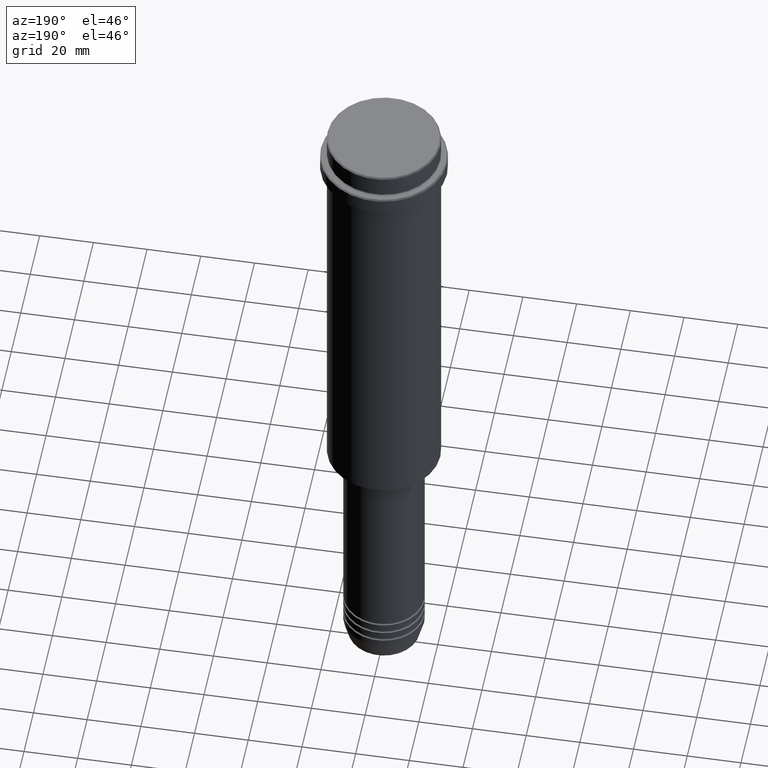
[diagram: clean part render]
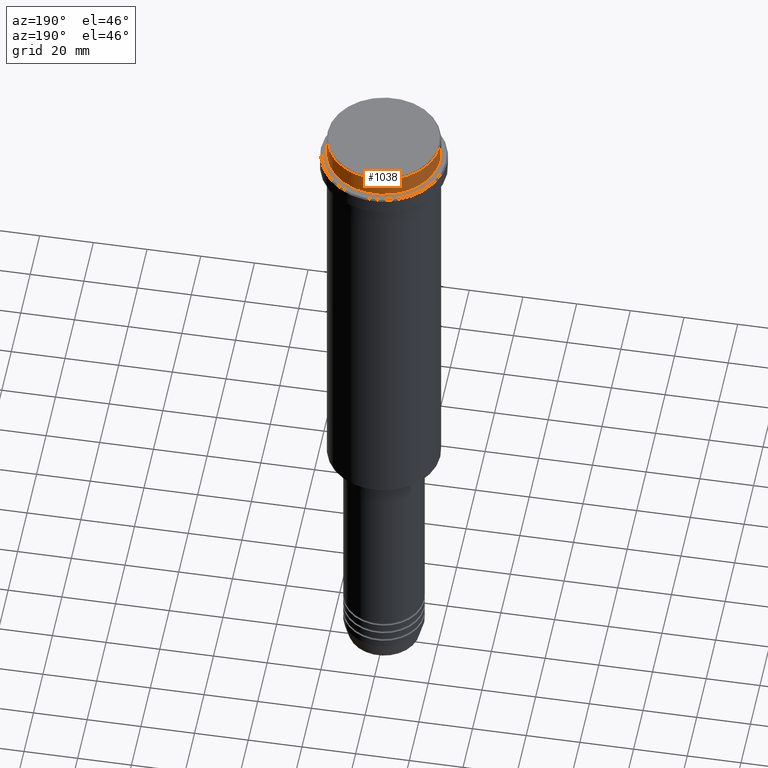
[diagram: same view with one face highlighted and labeled with its STEP entity id]
A machine part, auxiliary view. The second image highlights one B-rep face of the part: STEP entity #1038.
In plain terms, the highlighted cylindrical surface (partial cylindrical patch) has radius 21 mm, axis along (-0, -0, 1).
Its self-contained STEP definition (entity closure, byte-faithful):
#69 = EDGE_CURVE ( 'NONE', #314, #161, #1103, .T. ) ;
#70 = EDGE_CURVE ( 'NONE', #1191, #784, #837, .T. ) ;
#161 = VERTEX_POINT ( 'NONE', #517 ) ;
#186 = FACE_OUTER_BOUND ( 'NONE', #675, .T. ) ;
#191 = DIRECTION ( 'NONE',  ( 1.000000000000000000, 0.000000000000000000, 0.000000000000000000 ) ) ;
#244 = ORIENTED_EDGE ( 'NONE', *, *, #70, .T. ) ;
#256 = CARTESIAN_POINT ( 'NONE',  ( 20.99999999999999645, 0.000000000000000000, 0.000000000000000000 ) ) ;
#262 = AXIS2_PLACEMENT_3D ( 'NONE', #1343, #484, #549 ) ;
#273 = ORIENTED_EDGE ( 'NONE', *, *, #843, .T. ) ;
#298 = CYLINDRICAL_SURFACE ( 'NONE', #1382, 20.99999999999999645 ) ;
#314 = VERTEX_POINT ( 'NONE', #1324 ) ;
#378 = AXIS2_PLACEMENT_3D ( 'NONE', #602, #935, #538 ) ;
#469 = DIRECTION ( 'NONE',  ( -0.000000000000000000, -0.000000000000000000, 1.000000000000000000 ) ) ;
#484 = DIRECTION ( 'NONE',  ( -0.000000000000000000, -0.000000000000000000, 1.000000000000000000 ) ) ;
#517 = CARTESIAN_POINT ( 'NONE',  ( -20.99999999999999645, 2.571758278209441267E-15, -7.999999999999998224 ) ) ;
#538 = DIRECTION ( 'NONE',  ( 1.000000000000000000, 0.000000000000000000, 0.000000000000000000 ) ) ;
#540 = ORIENTED_EDGE ( 'NONE', *, *, #1396, .F. ) ;
#549 = DIRECTION ( 'NONE',  ( 1.000000000000000000, 0.000000000000000000, 0.000000000000000000 ) ) ;
#567 = VECTOR ( 'NONE', #713, 1000.000000000000000 ) ;
#602 = CARTESIAN_POINT ( 'NONE',  ( 0.000000000000000000, 0.000000000000000000, -0.4999999999999241163 ) ) ;
#625 = CARTESIAN_POINT ( 'NONE',  ( 0.000000000000000000, 0.000000000000000000, 0.000000000000000000 ) ) ;
#675 = EDGE_LOOP ( 'NONE', ( #896, #273, #244, #540 ) ) ;
#713 = DIRECTION ( 'NONE',  ( -0.000000000000000000, -0.000000000000000000, 1.000000000000000000 ) ) ;
#763 = CARTESIAN_POINT ( 'NONE',  ( -20.99999999999999645, 2.571758278209441267E-15, -0.4999999999999241163 ) ) ;
#784 = VERTEX_POINT ( 'NONE', #1007 ) ;
#819 = VECTOR ( 'NONE', #469, 1000.000000000000000 ) ;
#837 = CIRCLE ( 'NONE', #378, 20.99999999999999645 ) ;
#843 = EDGE_CURVE ( 'NONE', #161, #1191, #1254, .T. ) ;
#896 = ORIENTED_EDGE ( 'NONE', *, *, #69, .T. ) ;
#935 = DIRECTION ( 'NONE',  ( 0.000000000000000000, 0.000000000000000000, -1.000000000000000000 ) ) ;
#1007 = CARTESIAN_POINT ( 'NONE',  ( 20.99999999999999645, 0.000000000000000000, -0.4999999999999241163 ) ) ;
#1037 = CARTESIAN_POINT ( 'NONE',  ( -20.99999999999999645, 2.571758278209441267E-15, 0.000000000000000000 ) ) ;
#1038 = ADVANCED_FACE ( 'NONE', ( #186 ), #298, .T. ) ;
#1103 = CIRCLE ( 'NONE', #262, 20.99999999999999645 ) ;
#1164 = DIRECTION ( 'NONE',  ( -0.000000000000000000, -0.000000000000000000, 1.000000000000000000 ) ) ;
#1191 = VERTEX_POINT ( 'NONE', #763 ) ;
#1234 = LINE ( 'NONE', #256, #819 ) ;
#1254 = LINE ( 'NONE', #1037, #567 ) ;
#1324 = CARTESIAN_POINT ( 'NONE',  ( 20.99999999999999645, 0.000000000000000000, -7.999999999999998224 ) ) ;
#1343 = CARTESIAN_POINT ( 'NONE',  ( 0.000000000000000000, 0.000000000000000000, -7.999999999999998224 ) ) ;
#1382 = AXIS2_PLACEMENT_3D ( 'NONE', #625, #1164, #191 ) ;
#1396 = EDGE_CURVE ( 'NONE', #314, #784, #1234, .T. ) ;